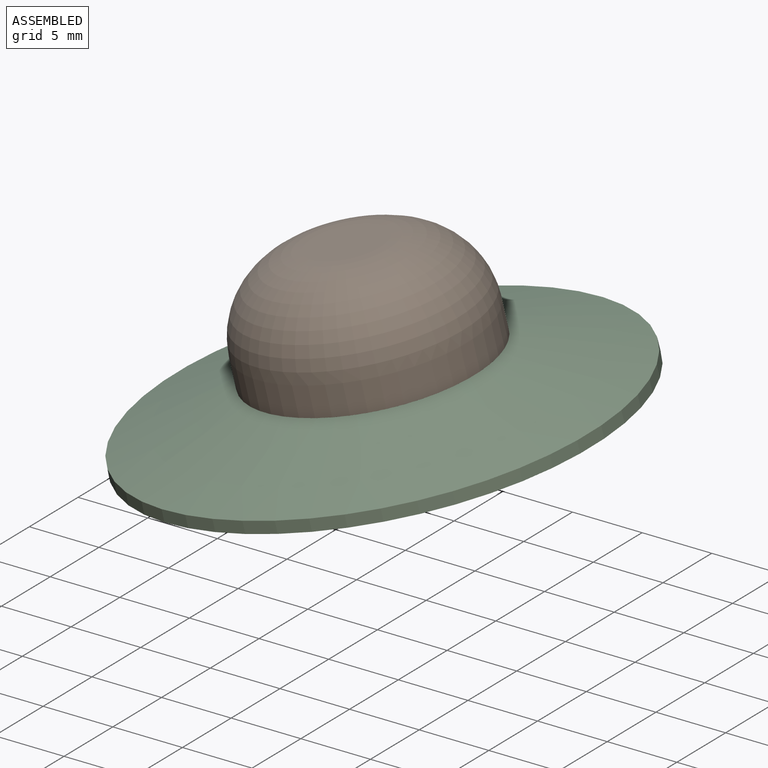
[diagram: assembled view]
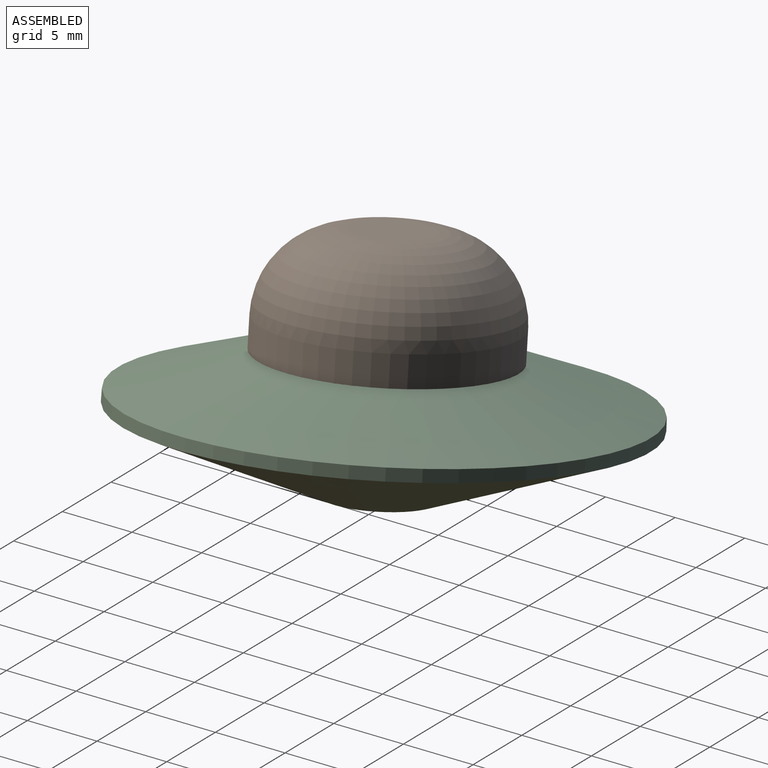
[diagram: assembled view, second angle]
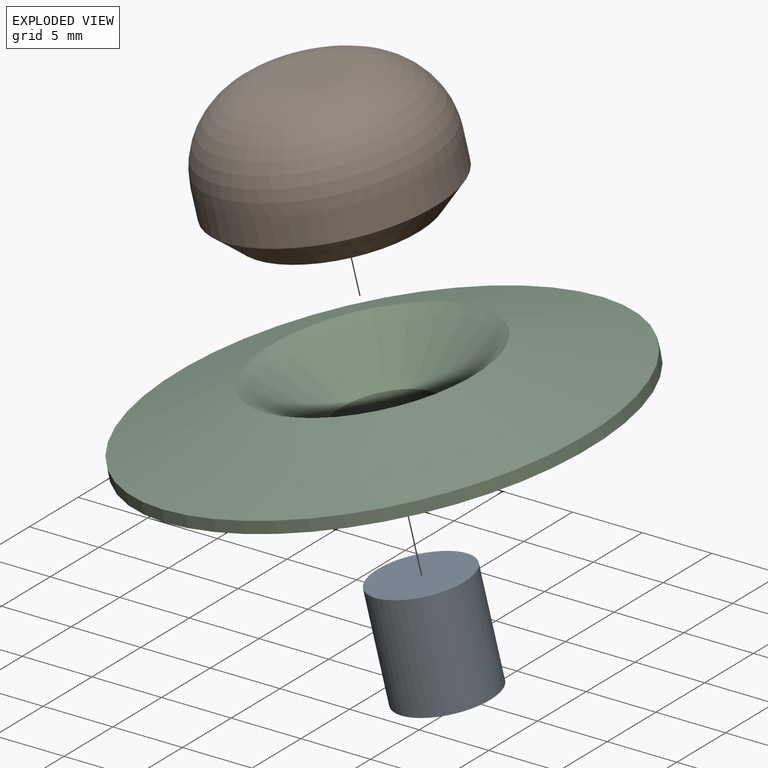
[diagram: exploded view]
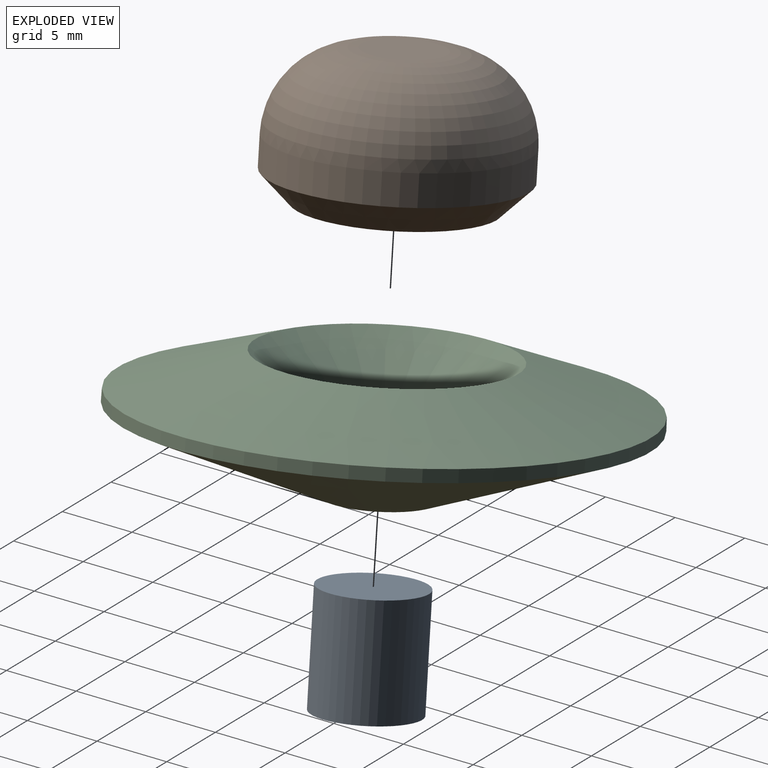
[diagram: exploded view, second angle]
ASSEMBLY  parts=3 mates=2
PART A: 3 faces, bbox 7.6x7x7 mm
  f0: cylinder r=3.49mm len=7.62mm, axis (-1,0,0), area 167.2mm2, adj f1,f2
  f1: plane 6.99x6.99mm, normal (1,0,0), area 38.3mm2, adj f0
  f2: plane 6.99x6.99mm, normal (-1,0,0), area 38.3mm2, adj f0
PART B: 7 faces, bbox 16.4x16.4x9.5 mm
  f0: cylinder r=8.22mm len=16.43mm, axis (0,0,-1), area 108.5mm2, adj f2,f6
  f1: plane 5.4x5.4mm, normal (0,0,1), area 22.9mm2, adj f2
  f2: torus R=2.7mm, axis (0,0,1), area 338.3mm2, adj f0,f1
  f3: cylinder r=6.31mm len=12.62mm, axis (0,0,-1), area 158.9mm2, adj f5,f6
  f4: plane 5.4x5.4mm, normal (0,0,-1), area 22.9mm2, adj f5
  f5: torus R=2.7mm, axis (0,0,1), area 178.3mm2, adj f3,f4
  f6: cone r=8.22mm half-angle=45deg, axis (0,0,1), area 123mm2, adj f0,f3
PART C: 5 faces, bbox 8.8x33.3x33.3 mm
  f0: cone r=17.85mm half-angle=71.7deg, axis (-1,-0.02,0), area 693.1mm2, adj f3,f4
  f1: cone r=17.85mm half-angle=69.4deg, axis (1,0.02,0), area 888.1mm2, adj f2,f4
  f2: cone r=3.6mm half-angle=1.1deg, axis (-1,-0.02,0), area 113.2mm2, adj f1,f3
  f3: cone r=8.22mm half-angle=53.6deg, axis (1,0.02,0), area 215.8mm2, adj f0,f2
  f4: cone r=16.66mm half-angle=1.1deg, axis (-1,-0.02,0), area 88.7mm2, adj f0,f1
PLACE A rot(axis=(0.17,-0.98,0.14),103.5deg) t=(60.76,-57.13,-4.49)mm
PLACE B rot(axis=(0.09,-0.51,0.85),23.4deg) t=(46.97,6.36,0.95)mm
PLACE C rot(axis=(0.18,-0.97,0.13),103.4deg) t=(44.83,11.24,2.55)mm
MATE fastened C.f2 <-> A.f0  axis (-0.2,-0.07,0.98) through (47.66,6.61,-2.45)mm
MATE fastened B.f0 <-> C.f2  axis (-0.2,-0.07,0.98) through (45.97,5.99,5.92)mm
